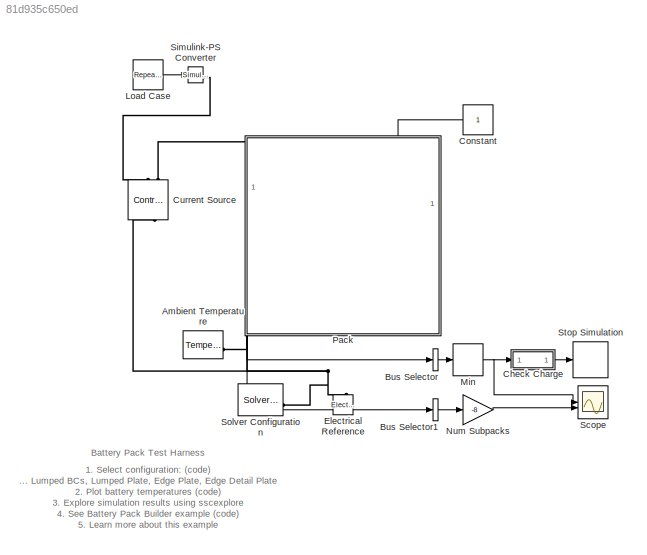
MODEL slx_81d935c650ed
KIND model
CONFIG AbsTol = 1e-3
CONFIG SolverName = VariableStepAuto
CONFIG StopTime = 2000
BLOCK [Reference] Ambient Temperature  REF=fl_lib/Thermal/Thermal Sources/Temperature Source
  NameLocation = top
  SourceBlock = fl_lib/Thermal/Thermal Sources/Temperature Source
  SourceType = Temperature Source
BLOCK [BusSelector] Bus Selector
  OutputAsBus = on
  OutputSignals = A1.socC.M1
BLOCK [BusSelector] Bus Selector1
  OutputAsBus = on
  OutputSignals = A1.i.M1
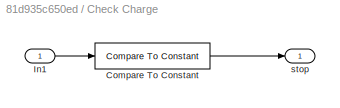
BLOCK [SubSystem] Check Charge
BLOCK [Reference] Check Charge/Compare To Constant  REF=simulink/Logic and Bit
Operations/Compare
To Constant
  SourceBlock = simulink/Logic and Bit\nOperations/Compare\nTo Constant
  SourceType = Compare To Constant
BLOCK [Inport] Check Charge/In1
BLOCK [Outport] Check Charge/stop
  VectorParamsAs1DForOutWhenUnconnected = off
BLOCK [Constant] Constant
BLOCK [Reference] Current Source  REF=fl_lib/Electrical/Electrical Sources/Controlled Current
Source
  NameLocation = right
  SourceBlock = fl_lib/Electrical/Electrical Sources/Controlled Current\nSource
  SourceType = Controlled Current\nSource
BLOCK [Reference] Electrical Reference  REF=fl_lib/Electrical/Electrical Elements/Electrical Reference
  LibrarySourceBlock = ee_lib/Connectors &\nReferences/Electrical Reference
  NameLocation = right
  SourceBlock = fl_lib/Electrical/Electrical Elements/Electrical Reference
  SourceType = Electrical Reference
BLOCK [Reference] Load Case  REF=simulink/Sources/Repeating
Sequence
  SourceBlock = simulink/Sources/Repeating\nSequence
  SourceType = Repeating table
BLOCK [MinMax] Min
BLOCK [Gain] Num Subpacks
  Gain = -8
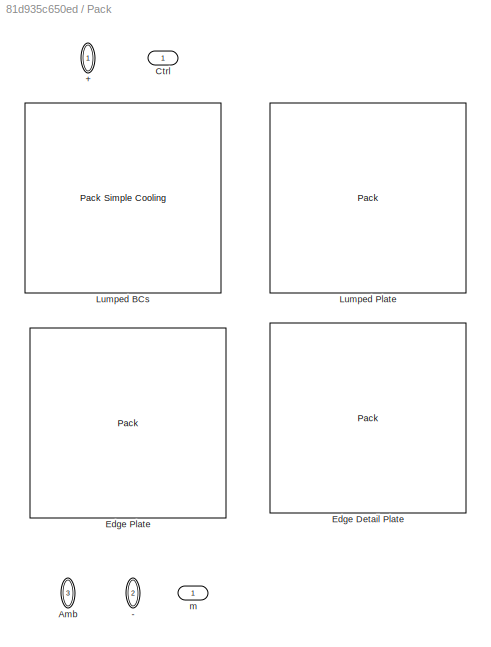
BLOCK [SubSystem] Pack
  AttributesFormatString = %<LabelModeActiveChoice>
  LabelModeActiveChoice = Lumped_BCs
  NameLocation = left
  PortSchema = {"entries":[{"content":{"sides":[{"content":{"connectorIds":[]},"type":"ConnectorPlacement.EquallySpacedRectSide","uuid":"bec220b6-5387-4603-a5dd-35505306a8ba"},{"content":{"connectorIds":[],"side":"RIGHT"},"type":"ConnectorPlacement.EquallySpacedRectSide","uuid":"5cb410c8-66f5-4af1-8039-25d6dadf8cb5"},{"content":{"connectorIds":["In1","LConn1"],"side":"TOP"},"type":"ConnectorPlacement.EquallySpac...<+411ch>
  Variant = on
  VariantControl = Choice
  VariantControlMode = label
BLOCK [PMIOPort] Pack/+
  NameLocation = left
  Side = Left
BLOCK [PMIOPort] Pack/-
  NameLocation = left
  Port = 2
  Side = Right
BLOCK [PMIOPort] Pack/Amb
  NameLocation = left
  Port = 3
  Side = Right
BLOCK [Inport] Pack/Ctrl
BLOCK [Reference] Pack/Edge Detail Plate  REF=pack_5p48s8p_1g10g1_5g1g5_Thr_library/Pack
  SourceBlock = pack_5p48s8p_1g10g1_5g1g5_Thr_library/Pack
BLOCK [Reference] Pack/Edge Plate  REF=pack_5p48s8p_1g10g1_Thr_library/Pack
  SourceBlock = pack_5p48s8p_1g10g1_Thr_library/Pack
BLOCK [Reference] Pack/Lumped BCs  REF=pack_5p48s8p_Thr_library/Pack
Simple
Cooling
  SourceBlock = pack_5p48s8p_Thr_library/Pack\nSimple\nCooling
BLOCK [Reference] Pack/Lumped Plate  REF=pack_5p48s8p_Thr_library/Pack
  SourceBlock = pack_5p48s8p_Thr_library/Pack
BLOCK [Outport] Pack/m
BLOCK [Scope] Scope
  ActiveDisplayYMaximum = 1.0875
  ActiveDisplayYMinimum = 0.2125
  Floating = off
  GraphicalSettings = {"GraphicalSettings":{"LegacySettings":true,"Style":{"Style":{"AxesColor":"[0 0 0]","ChannelNames":["",""],"ColorOrder":"[1 0.909803921568627 0.392156862745098;0.149019607843137 0.549019607843137 0.866666666666667;0.96078431372549 0.466666666666667 0.16078431372549;0.286274509803922 0.858823529411765 0.250980392156863;0.752941176470588 0.36078431372549 0.984313725490196;0.423529411764706 0.9568627...<+532ch>
  LayoutDimensionsString = [2 1]
  MultipleDisplayCache = [{"MaxYLimMag":1.0875,"MaxYLimReal":1.0875,"MinYLimMag":0.2125,"MinYLimReal":0.2125,"PlotAsMagnitudePhase":false,"ShowGrid":true,"ShowLegend":false,"Title":"Battery SOC","YLabel":""},{"MaxYLimMag":64.10777,"MaxYLimReal":512.86304,"MinYLimMag":0,"MinYLimReal":-56.98478,"PlotAsMagnitudePhase":false,"ShowGrid":true,"ShowLegend":false,"Title":"Battery Current","YLabel":""}]
  NumInputPorts = 2
  ScopeFrameLocation = window
  Title = Battery SOC
  WasSavedAsWebScope = on
  WindowPosition = [798.000000,358.000000,362.000000,420.000000,]
BLOCK [Reference] Simulink-PS Converter  REF=nesl_utility/Simulink-PS
Converter
  SourceBlock = nesl_utility/Simulink-PS\nConverter
  SourceType = Simulink-PS\nConverter
BLOCK [Reference] Solver Configuration  REF=nesl_utility/Solver
Configuration
  SourceBlock = nesl_utility/Solver\nConfiguration
  SourceType = Solver\nConfiguration
BLOCK [Stop] Stop Simulation
ANNOTATION (root): 1. Select configuration: ( code ) ... Lumped BCs , Lumped Plate , Edge Plate , Edge Detail Plate 2. Plot battery temperatures ( code ) 3. Explore simulation results using sscexplore 4. See Battery Pack Builder example ( code ) 5. Learn more about this example
ANNOTATION (root): Battery Pack Test Harness
LINE Bus Selector1:1 -> Num Subpacks:1
LINE Bus Selector:1 -> Min:1
LINE Check Charge/Compare To Constant:1 -> Check Charge/stop:1
LINE Check Charge/In1:1 -> Check Charge/Compare To Constant:1
LINE Check Charge:1 -> Stop Simulation:1
LINE Constant:1 -> Pack:1
LINE Load Case:1 -> Simulink-PS Converter:1
NET Min:1 -> Check Charge:1, Scope:1
LINE Num Subpacks:1 -> Scope:2
NET Pack:1 -> Bus Selector1:1, Bus Selector:1
PLINE Ambient Temperature:LConn1 -- Pack:RConn2
PNET net1: Current Source:LConn1 -- Electrical Reference:LConn1 -- Pack:RConn1 -- Solver Configuration:RConn1
PLINE Current Source:RConn1 -- Simulink-PS Converter:RConn1
PLINE Current Source:RConn2 -- Pack:LConn1
note: NET lines group one-source signal fan-out (src -> all destinations, sorted); 1:1 wires keep LINE; PNET lines group multi-terminal physical nets as a canonical sorted terminal list (undirected conserving connections); 2-terminal nets keep the pairwise PLINE form
